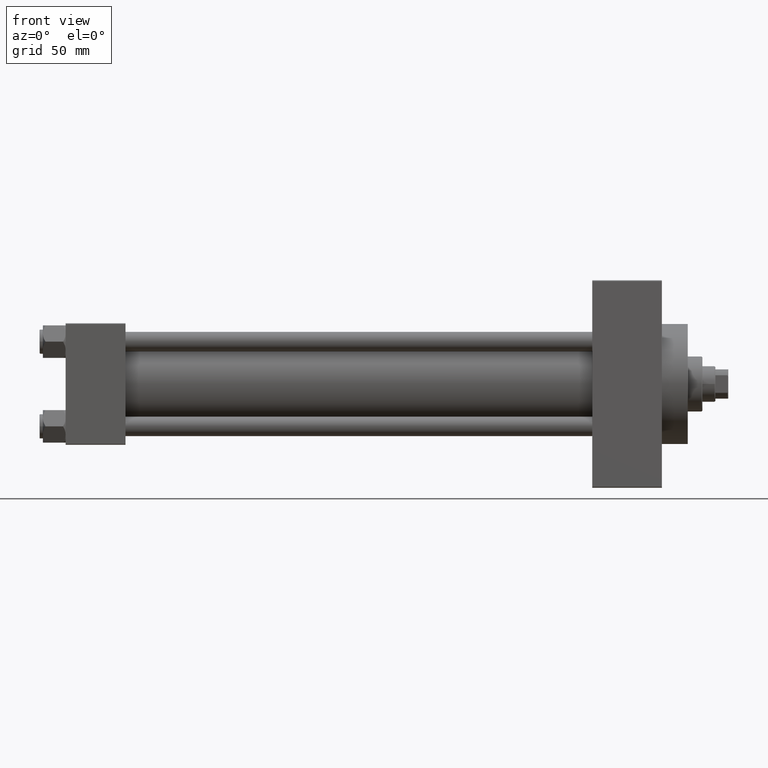
[diagram: clean part render]
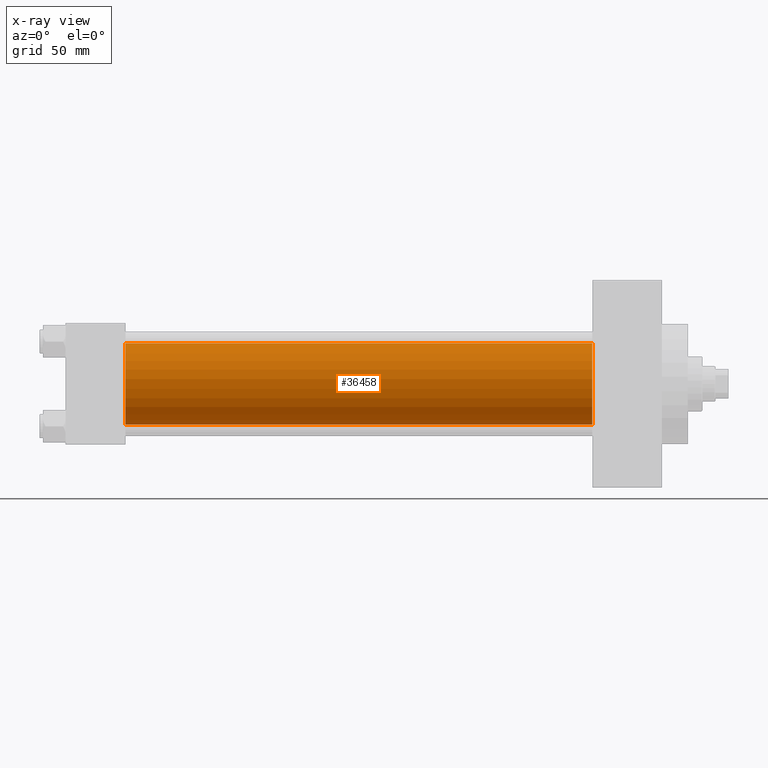
[diagram: x-ray — body ghosted, one internal face saturated and labeled with its STEP entity id]
A machine part, front view, then the same camera in x-ray: the body is ghosted and one INTERNAL B-rep face — a face not visible from any outside direction — is saturated and labeled: STEP entity #36458.
In plain terms, the highlighted cylindrical surface (partial cylindrical patch) has radius 25 mm, axis along (-1, -0, -0).
Its self-contained STEP definition (entity closure, byte-faithful):
#741 = VERTEX_POINT ( 'NONE', #47122 ) ;
#2342 = CIRCLE ( 'NONE', #28712, 25.00000000000000000 ) ;
#2364 = DIRECTION ( 'NONE',  ( 0.000000000000000000, 0.000000000000000000, 1.000000000000000000 ) ) ;
#4353 = ORIENTED_EDGE ( 'NONE', *, *, #17850, .T. ) ;
#4424 = CARTESIAN_POINT ( 'NONE',  ( 324.9999999999999432, 4.595317839031724996E-16, -25.00000000000000000 ) ) ;
#4863 = LINE ( 'NONE', #35437, #41963 ) ;
#6654 = ORIENTED_EDGE ( 'NONE', *, *, #11878, .F. ) ;
#7407 = AXIS2_PLACEMENT_3D ( 'NONE', #17641, #9642, #32449 ) ;
#9642 = DIRECTION ( 'NONE',  ( 1.000000000000000000, 0.000000000000000000, 0.000000000000000000 ) ) ;
#9929 = CARTESIAN_POINT ( 'NONE',  ( 37.00000000000000000, 4.595317839031724996E-16, -25.00000000000000000 ) ) ;
#11878 = EDGE_CURVE ( 'NONE', #741, #46938, #47410, .T. ) ;
#12613 = DIRECTION ( 'NONE',  ( -1.000000000000000000, -0.000000000000000000, -0.000000000000000000 ) ) ;
#13621 = CARTESIAN_POINT ( 'NONE',  ( 324.9999999999999432, -2.602085213965210642E-15, 0.000000000000000000 ) ) ;
#15125 = VERTEX_POINT ( 'NONE', #19458 ) ;
#16815 = DIRECTION ( 'NONE',  ( 1.000000000000000000, 0.000000000000000000, 0.000000000000000000 ) ) ;
#17641 = CARTESIAN_POINT ( 'NONE',  ( 37.00000000000000000, -2.602085213965210642E-15, 0.000000000000000000 ) ) ;
#17850 = EDGE_CURVE ( 'NONE', #26769, #46938, #4863, .T. ) ;
#19458 = CARTESIAN_POINT ( 'NONE',  ( 324.9999999999999432, -2.602085213965210642E-15, 25.00000000000000000 ) ) ;
#21174 = LINE ( 'NONE', #39238, #36167 ) ;
#24598 = ORIENTED_EDGE ( 'NONE', *, *, #43807, .F. ) ;
#24842 = ORIENTED_EDGE ( 'NONE', *, *, #33269, .T. ) ;
#25597 = AXIS2_PLACEMENT_3D ( 'NONE', #13621, #29160, #2364 ) ;
#26769 = VERTEX_POINT ( 'NONE', #4424 ) ;
#28595 = DIRECTION ( 'NONE',  ( 0.000000000000000000, 0.000000000000000000, -1.000000000000000000 ) ) ;
#28712 = AXIS2_PLACEMENT_3D ( 'NONE', #43873, #16815, #28595 ) ;
#29160 = DIRECTION ( 'NONE',  ( -1.000000000000000000, -0.000000000000000000, -0.000000000000000000 ) ) ;
#29404 = FACE_OUTER_BOUND ( 'NONE', #37192, .T. ) ;
#32449 = DIRECTION ( 'NONE',  ( 0.000000000000000000, 0.000000000000000000, -1.000000000000000000 ) ) ;
#32474 = DIRECTION ( 'NONE',  ( -1.000000000000000000, -0.000000000000000000, -0.000000000000000000 ) ) ;
#33269 = EDGE_CURVE ( 'NONE', #15125, #26769, #2342, .T. ) ;
#35437 = CARTESIAN_POINT ( 'NONE',  ( 324.9999999999999432, 4.595317839031724996E-16, -25.00000000000000000 ) ) ;
#36167 = VECTOR ( 'NONE', #32474, 1000.000000000000000 ) ;
#36458 = ADVANCED_FACE ( 'NONE', ( #29404 ), #39936, .F. ) ;
#37192 = EDGE_LOOP ( 'NONE', ( #24842, #4353, #6654, #24598 ) ) ;
#39238 = CARTESIAN_POINT ( 'NONE',  ( 324.9999999999999432, -2.602085213965210642E-15, 25.00000000000000000 ) ) ;
#39936 = CYLINDRICAL_SURFACE ( 'NONE', #25597, 25.00000000000000000 ) ;
#41963 = VECTOR ( 'NONE', #12613, 1000.000000000000000 ) ;
#43807 = EDGE_CURVE ( 'NONE', #15125, #741, #21174, .T. ) ;
#43873 = CARTESIAN_POINT ( 'NONE',  ( 324.9999999999999432, -2.602085213965210642E-15, 0.000000000000000000 ) ) ;
#46938 = VERTEX_POINT ( 'NONE', #9929 ) ;
#47122 = CARTESIAN_POINT ( 'NONE',  ( 37.00000000000000000, -2.602085213965210642E-15, 25.00000000000000000 ) ) ;
#47410 = CIRCLE ( 'NONE', #7407, 25.00000000000000000 ) ;